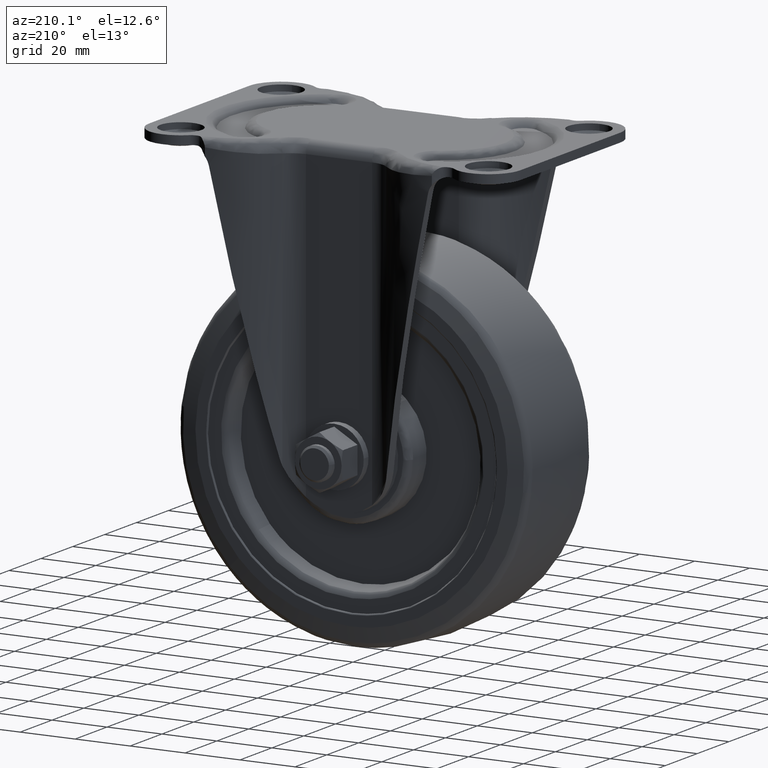
[diagram: clean part render]
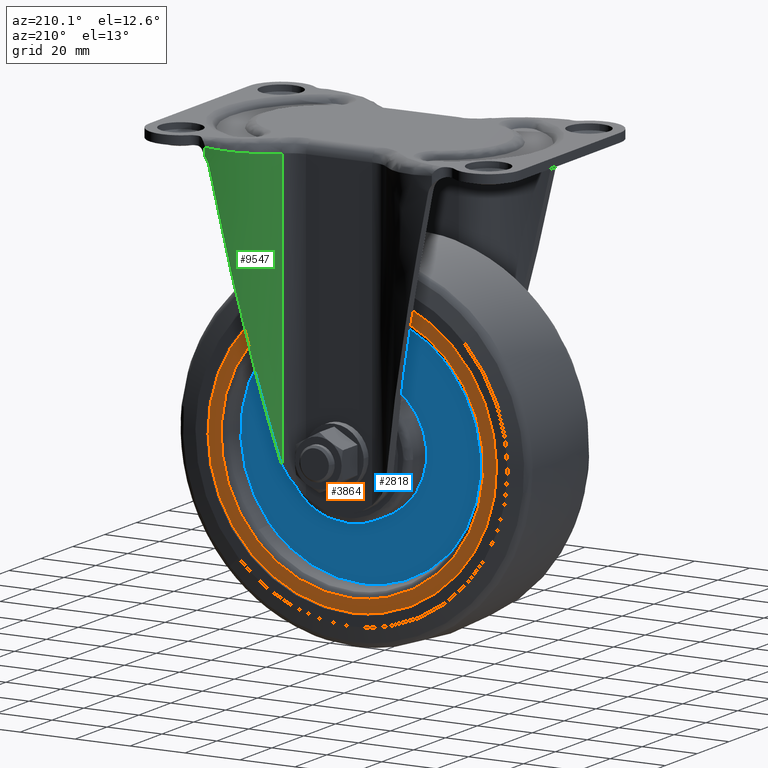
[diagram: same view with three faces highlighted in distinct colors, each labeled with its STEP entity id]
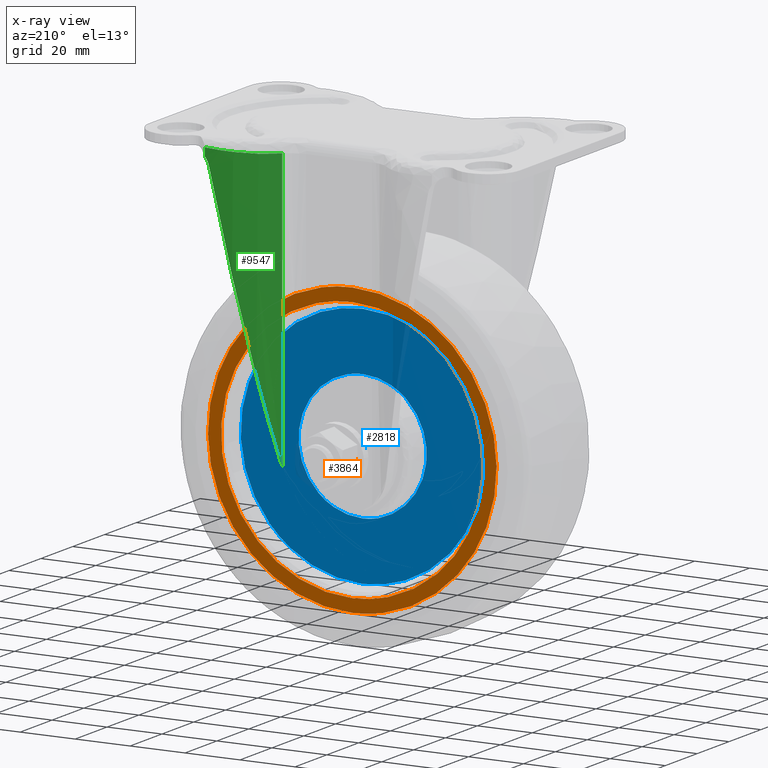
[diagram: x-ray of the same camera — body ghosted, the three highlighted faces saturated]
A machine part, auxiliary view with three faces highlighted in distinct colors.
The next image is the same camera in x-ray (body ghosted, the three faces saturated) — at least one of them is partly hidden behind the body in this view.
Their STEP definitions:

[orange] entity #3864 — the highlighted face is a freeform B-spline surface patch.
#3657=CARTESIAN_POINT('',(45.959362842049053,20.500000000000000,-86.960149470310910));
#3658=VERTEX_POINT('',#3657);
#3672=CARTESIAN_POINT('',(0.0,20.500000000000000,-147.773431263864890));
#3673=VERTEX_POINT('',#3672);
#3674=CARTESIAN_POINT('',(0.0,20.500000000000000,-147.773431263864890));
#3675=CARTESIAN_POINT('',(47.773431263714727,20.500000000000007,-147.773431263907530));
#3676=CARTESIAN_POINT('',(47.773431263516002,20.500000000000000,-100.000000000099010));
#3677=CARTESIAN_POINT('',(47.773431263488362,20.499999999999996,-93.353890611006534));
#3678=CARTESIAN_POINT('',(45.959362842049046,20.499999999999993,-86.960149470310910));
#3686=(BOUNDED_CURVE()B_SPLINE_CURVE(2,(#3674,#3675,#3676,#3677,#3678),.UNSPECIFIED.,.F.,.U.)B_SPLINE_CURVE_WITH_KNOTS((3,2,3),(0.0,0.250000000000000,0.296505535785155),.UNSPECIFIED.)CURVE()GEOMETRIC_REPRESENTATION_ITEM()RATIONAL_B_SPLINE_CURVE((1.0,0.707106781186548,1.0,0.945515375724967,0.911301444601641))REPRESENTATION_ITEM(''));
#3687=EDGE_CURVE('',#3673,#3658,#3686,.T.);
#3689=CARTESIAN_POINT('',(-45.959362842049060,20.500000000000000,-113.039850529689100));
#3690=VERTEX_POINT('',#3689);
#3691=CARTESIAN_POINT('',(-45.959362842049060,20.499999999999993,-113.039850529689080));
#3692=CARTESIAN_POINT('',(-36.104554743849043,20.499999999999996,-147.773431263808480));
#3693=CARTESIAN_POINT('',(0.0,20.500000000000000,-147.773431263864890));
#3701=(BOUNDED_CURVE()B_SPLINE_CURVE(2,(#3691,#3692,#3693),.UNSPECIFIED.,.F.,.U.)B_SPLINE_CURVE_WITH_KNOTS((3,3),(0.796505535785155,1.0),.UNSPECIFIED.)CURVE()GEOMETRIC_REPRESENTATION_ITEM()RATIONAL_B_SPLINE_CURVE((0.911301444601641,0.761591405461580,1.0))REPRESENTATION_ITEM(''));
#3702=EDGE_CURVE('',#3690,#3673,#3701,.T.);
#3752=CARTESIAN_POINT('',(0.0,20.500000000000000,-52.226568736135107));
#3753=VERTEX_POINT('',#3752);
#3754=CARTESIAN_POINT('',(0.0,20.500000000000000,-52.226568736135107));
#3755=CARTESIAN_POINT('',(-47.773431263714727,20.500000000000007,-52.226568736092503));
#3756=CARTESIAN_POINT('',(-47.773431263516002,20.499999999999989,-99.999999999901007));
#3757=CARTESIAN_POINT('',(-47.773431263488362,20.499999999999996,-106.646109388993420));
#3758=CARTESIAN_POINT('',(-45.959362842049060,20.499999999999993,-113.039850529689080));
#3766=(BOUNDED_CURVE()B_SPLINE_CURVE(2,(#3754,#3755,#3756,#3757,#3758),.UNSPECIFIED.,.F.,.U.)B_SPLINE_CURVE_WITH_KNOTS((3,2,3),(0.500000000000000,0.750000000000000,0.796505535785155),.UNSPECIFIED.)CURVE()GEOMETRIC_REPRESENTATION_ITEM()RATIONAL_B_SPLINE_CURVE((1.0,0.707106781186548,1.0,0.945515375724967,0.911301444601641))REPRESENTATION_ITEM(''));
#3767=EDGE_CURVE('',#3753,#3690,#3766,.T.);
#3769=CARTESIAN_POINT('',(45.959362842049046,20.499999999999993,-86.960149470310910));
#3770=CARTESIAN_POINT('',(36.104554743849029,20.499999999999996,-52.226568736191496));
#3771=CARTESIAN_POINT('',(0.0,20.500000000000000,-52.226568736135107));
#3779=(BOUNDED_CURVE()B_SPLINE_CURVE(2,(#3769,#3770,#3771),.UNSPECIFIED.,.F.,.U.)B_SPLINE_CURVE_WITH_KNOTS((3,3),(0.296505535785155,0.500000000000000),.UNSPECIFIED.)CURVE()GEOMETRIC_REPRESENTATION_ITEM()RATIONAL_B_SPLINE_CURVE((0.911301444601641,0.761591405461580,1.0))REPRESENTATION_ITEM(''));
#3780=EDGE_CURVE('',#3658,#3753,#3779,.T.);
#3787=CARTESIAN_POINT('',(-57.740190513793557,20.500000000000000,-42.255250203510393));
#3788=CARTESIAN_POINT('',(-57.740190513793557,20.500000000000000,-157.744752612809090));
#3789=CARTESIAN_POINT('',(57.740193329890658,20.500000000000000,-42.255250203510393));
#3790=CARTESIAN_POINT('',(57.740193329890658,20.500000000000000,-157.744752612809090));
#3791=B_SPLINE_SURFACE_WITH_KNOTS('',1,1,((#3787,#3789),(#3788,#3790)),.UNSPECIFIED.,.F.,.F.,.U.,(2,2),(2,2),(0.0,115.489502409298690),(0.0,115.480383843684190),.UNSPECIFIED.);
#3792=CARTESIAN_POINT('',(-52.495854820699947,20.500000003024141,-99.340282906093194));
#3793=VERTEX_POINT('',#3792);
#3794=CARTESIAN_POINT('',(0.0,20.500000000000000,-152.500000000000000));
#3795=VERTEX_POINT('',#3794);
#3796=CARTESIAN_POINT('',(-52.495854820699947,20.500000003024144,-99.340282906093194));
#3797=CARTESIAN_POINT('',(-52.499999999999986,20.500000003014755,-99.670128430410401));
#3798=CARTESIAN_POINT('',(-52.499999999999993,20.500000003005258,-100.0));
#3799=CARTESIAN_POINT('',(-52.499999999999986,20.500000001493191,-152.500000000000030));
#3800=CARTESIAN_POINT('',(0.0,20.500000000000000,-152.500000000000000));
#3808=(BOUNDED_CURVE()B_SPLINE_CURVE(2,(#3796,#3797,#3798,#3799,#3800),.UNSPECIFIED.,.F.,.U.)B_SPLINE_CURVE_WITH_KNOTS((3,2,3),(0.747784295921625,0.750000000000000,1.0),.UNSPECIFIED.)CURVE()GEOMETRIC_REPRESENTATION_ITEM()RATIONAL_B_SPLINE_CURVE((0.994854295643774,0.997404141202186,1.0,0.707106781186547,1.0))REPRESENTATION_ITEM(''));
#3809=EDGE_CURVE('',#3793,#3795,#3808,.T.);
#3810=ORIENTED_EDGE('',*,*,#3809,.F.);
#3811=CARTESIAN_POINT('',(0.0,20.500000000000000,-47.500000000000007));
#3812=VERTEX_POINT('',#3811);
#3813=CARTESIAN_POINT('',(0.0,20.500000000000000,-47.500000000000007));
#3814=CARTESIAN_POINT('',(-51.844376320103578,20.500000001512070,-47.500000000000000));
#3815=CARTESIAN_POINT('',(-52.495854820699947,20.500000003024141,-99.340282906093194));
#3823=(BOUNDED_CURVE()B_SPLINE_CURVE(2,(#3813,#3814,#3815),.UNSPECIFIED.,.F.,.U.)B_SPLINE_CURVE_WITH_KNOTS((3,3),(0.500000000000000,0.747784295921625),.UNSPECIFIED.)CURVE()GEOMETRIC_REPRESENTATION_ITEM()RATIONAL_B_SPLINE_CURVE((1.0,0.709702639984361,0.994854295643775))REPRESENTATION_ITEM(''));
#3824=EDGE_CURVE('',#3812,#3793,#3823,.T.);
#3825=ORIENTED_EDGE('',*,*,#3824,.F.);
#3826=CARTESIAN_POINT('',(52.495854820699947,20.500000003024141,-100.659717093906810));
#3827=VERTEX_POINT('',#3826);
#3828=CARTESIAN_POINT('',(52.495854820699947,20.500000003024141,-100.659717093906820));
#3829=CARTESIAN_POINT('',(52.499999999999986,20.500000003014762,-100.329871569589610));
#3830=CARTESIAN_POINT('',(52.499999999999993,20.500000003005258,-100.0));
#3831=CARTESIAN_POINT('',(52.499999999999986,20.500000001493191,-47.500000000000007));
#3832=CARTESIAN_POINT('',(0.0,20.500000000000000,-47.500000000000007));
#3840=(BOUNDED_CURVE()B_SPLINE_CURVE(2,(#3828,#3829,#3830,#3831,#3832),.UNSPECIFIED.,.F.,.U.)B_SPLINE_CURVE_WITH_KNOTS((3,2,3),(0.247784295921625,0.250000000000000,0.500000000000000),.UNSPECIFIED.)CURVE()GEOMETRIC_REPRESENTATION_ITEM()RATIONAL_B_SPLINE_CURVE((0.994854295643775,0.997404141202187,1.0,0.707106781186547,1.0))REPRESENTATION_ITEM(''));
#3841=EDGE_CURVE('',#3827,#3812,#3840,.T.);
#3842=ORIENTED_EDGE('',*,*,#3841,.F.);
#3843=CARTESIAN_POINT('',(0.0,20.500000000000000,-152.500000000000000));
#3844=CARTESIAN_POINT('',(51.844376320103578,20.500000001512070,-152.499999999999940));
#3845=CARTESIAN_POINT('',(52.495854820699947,20.500000003024141,-100.659717093906820));
#3853=(BOUNDED_CURVE()B_SPLINE_CURVE(2,(#3843,#3844,#3845),.UNSPECIFIED.,.F.,.U.)B_SPLINE_CURVE_WITH_KNOTS((3,3),(0.0,0.247784295921625),.UNSPECIFIED.)CURVE()GEOMETRIC_REPRESENTATION_ITEM()RATIONAL_B_SPLINE_CURVE((1.0,0.709702639984361,0.994854295643775))REPRESENTATION_ITEM(''));
#3854=EDGE_CURVE('',#3795,#3827,#3853,.T.);
#3855=ORIENTED_EDGE('',*,*,#3854,.F.);
#3856=EDGE_LOOP('',(#3810,#3825,#3842,#3855));
#3857=FACE_OUTER_BOUND('',#3856,.T.);
#3858=ORIENTED_EDGE('',*,*,#3687,.T.);
#3859=ORIENTED_EDGE('',*,*,#3780,.T.);
#3860=ORIENTED_EDGE('',*,*,#3767,.T.);
#3861=ORIENTED_EDGE('',*,*,#3702,.T.);
#3862=EDGE_LOOP('',(#3858,#3859,#3860,#3861));
#3863=FACE_BOUND('',#3862,.T.);
#3864=ADVANCED_FACE('',(#3857,#3863),#3791,.F.);

[blue] entity #2818 — the highlighted face is a freeform B-spline surface patch.
#2638=CARTESIAN_POINT('',(-16.038661258010421,14.0,-83.098776817910618));
#2639=VERTEX_POINT('',#2638);
#2645=CARTESIAN_POINT('',(0.0,14.0,-76.700000000000003));
#2646=VERTEX_POINT('',#2645);
#2647=CARTESIAN_POINT('',(0.0,14.0,-76.700000000000003));
#2648=CARTESIAN_POINT('',(-9.295757137015070,13.999999999999998,-76.700000000000003));
#2649=CARTESIAN_POINT('',(-16.038661258010425,13.999999999999996,-83.098776817910618));
#2657=(BOUNDED_CURVE()B_SPLINE_CURVE(2,(#2647,#2648,#2649),.UNSPECIFIED.,.F.,.U.)B_SPLINE_CURVE_WITH_KNOTS((3,3),(0.500000000000000,0.621049523483373),.UNSPECIFIED.)CURVE()GEOMETRIC_REPRESENTATION_ITEM()RATIONAL_B_SPLINE_CURVE((1.0,0.858181661724481,0.853699661604605))REPRESENTATION_ITEM(''));
#2658=EDGE_CURVE('',#2646,#2639,#2657,.T.);
#2660=CARTESIAN_POINT('',(16.038661258010428,14.0,-116.901223182089400));
#2661=VERTEX_POINT('',#2660);
#2662=CARTESIAN_POINT('',(16.038661258010436,13.999999999999998,-116.901223182089380));
#2663=CARTESIAN_POINT('',(23.300000000000001,14.000000000000005,-110.010470299430810));
#2664=CARTESIAN_POINT('',(23.300000000000001,14.0,-100.0));
#2665=CARTESIAN_POINT('',(23.300000000000004,13.999999999999998,-76.700000000000003));
#2666=CARTESIAN_POINT('',(0.0,14.0,-76.700000000000003));
#2674=(BOUNDED_CURVE()B_SPLINE_CURVE(2,(#2662,#2663,#2664,#2665,#2666),.UNSPECIFIED.,.F.,.U.)B_SPLINE_CURVE_WITH_KNOTS((3,2,3),(0.121049523483373,0.250000000000000,0.500000000000000),.UNSPECIFIED.)CURVE()GEOMETRIC_REPRESENTATION_ITEM()RATIONAL_B_SPLINE_CURVE((0.853699661604605,0.848925119462067,1.0,0.707106781186548,1.0))REPRESENTATION_ITEM(''));
#2675=EDGE_CURVE('',#2661,#2646,#2674,.T.);
#2705=CARTESIAN_POINT('',(0.0,14.0,-123.300000000000000));
#2706=VERTEX_POINT('',#2705);
#2707=CARTESIAN_POINT('',(0.0,14.0,-123.300000000000000));
#2708=CARTESIAN_POINT('',(9.295757137015077,14.000000000000002,-123.300000000000050));
#2709=CARTESIAN_POINT('',(16.038661258010436,13.999999999999998,-116.901223182089370));
#2717=(BOUNDED_CURVE()B_SPLINE_CURVE(2,(#2707,#2708,#2709),.UNSPECIFIED.,.F.,.U.)B_SPLINE_CURVE_WITH_KNOTS((3,3),(0.0,0.121049523483373),.UNSPECIFIED.)CURVE()GEOMETRIC_REPRESENTATION_ITEM()RATIONAL_B_SPLINE_CURVE((1.0,0.858181661724481,0.853699661604605))REPRESENTATION_ITEM(''));
#2718=EDGE_CURVE('',#2706,#2661,#2717,.T.);
#2720=CARTESIAN_POINT('',(-16.038661258010425,13.999999999999996,-83.098776817910618));
#2721=CARTESIAN_POINT('',(-23.300000000000001,13.999999999999993,-89.989529700569179));
#2722=CARTESIAN_POINT('',(-23.300000000000001,14.0,-100.0));
#2723=CARTESIAN_POINT('',(-23.300000000000004,13.999999999999998,-123.300000000000010));
#2724=CARTESIAN_POINT('',(0.0,14.0,-123.300000000000000));
#2732=(BOUNDED_CURVE()B_SPLINE_CURVE(2,(#2720,#2721,#2722,#2723,#2724),.UNSPECIFIED.,.F.,.U.)B_SPLINE_CURVE_WITH_KNOTS((3,2,3),(0.621049523483373,0.750000000000000,1.0),.UNSPECIFIED.)CURVE()GEOMETRIC_REPRESENTATION_ITEM()RATIONAL_B_SPLINE_CURVE((0.853699661604605,0.848925119462067,1.0,0.707106781186548,1.0))REPRESENTATION_ITEM(''));
#2733=EDGE_CURVE('',#2639,#2706,#2732,.T.);
#2741=CARTESIAN_POINT('',(-48.785337735258267,14.0,-51.201119637182373));
#2742=CARTESIAN_POINT('',(-48.785337735258267,14.0,-148.798882742830390));
#2743=CARTESIAN_POINT('',(48.785340115270962,14.0,-51.201119637182373));
#2744=CARTESIAN_POINT('',(48.785340115270962,14.0,-148.798882742830390));
#2745=B_SPLINE_SURFACE_WITH_KNOTS('',1,1,((#2741,#2743),(#2742,#2744)),.UNSPECIFIED.,.F.,.F.,.U.,(2,2),(2,2),(0.0,97.597763105647999),(0.0,97.570677850529222),.UNSPECIFIED.);
#2746=CARTESIAN_POINT('',(-33.736666854499347,14.000000000000121,-71.186164447654122));
#2747=VERTEX_POINT('',#2746);
#2748=CARTESIAN_POINT('',(0.0,14.0,-144.366651999999990));
#2749=VERTEX_POINT('',#2748);
#2750=CARTESIAN_POINT('',(-33.736666854499319,13.999999999999996,-71.186164447654136));
#2751=CARTESIAN_POINT('',(-44.366652000000002,14.000000000000005,-83.632277943045281));
#2752=CARTESIAN_POINT('',(-44.366652000000002,14.0,-100.0));
#2753=CARTESIAN_POINT('',(-44.366652000000002,13.999999999999998,-144.366652000000070));
#2754=CARTESIAN_POINT('',(0.0,14.0,-144.366651999999990));
#2762=(BOUNDED_CURVE()B_SPLINE_CURVE(2,(#2750,#2751,#2752,#2753,#2754),.UNSPECIFIED.,.F.,.U.)B_SPLINE_CURVE_WITH_KNOTS((3,2,3),(0.636856838650619,0.750000000000000,1.0),.UNSPECIFIED.)CURVE()GEOMETRIC_REPRESENTATION_ITEM()RATIONAL_B_SPLINE_CURVE((0.854871031639152,0.867444541142600,1.0,0.707106781186547,1.0))REPRESENTATION_ITEM(''));
#2763=EDGE_CURVE('',#2747,#2749,#2762,.T.);
#2764=ORIENTED_EDGE('',*,*,#2763,.F.);
#2765=CARTESIAN_POINT('',(0.0,14.0,-55.633348000000012));
#2766=VERTEX_POINT('',#2765);
#2767=CARTESIAN_POINT('',(0.0,14.0,-55.633348000000012));
#2768=CARTESIAN_POINT('',(-20.453306721998263,14.000000000000002,-55.633348000000005));
#2769=CARTESIAN_POINT('',(-33.736666854499319,13.999999999999996,-71.186164447654136));
#2777=(BOUNDED_CURVE()B_SPLINE_CURVE(2,(#2767,#2768,#2769),.UNSPECIFIED.,.F.,.U.)B_SPLINE_CURVE_WITH_KNOTS((3,3),(0.500000000000000,0.636856838650619),.UNSPECIFIED.)CURVE()GEOMETRIC_REPRESENTATION_ITEM()RATIONAL_B_SPLINE_CURVE((1.0,0.839662240043947,0.854871031639152))REPRESENTATION_ITEM(''));
#2778=EDGE_CURVE('',#2766,#2747,#2777,.T.);
#2779=ORIENTED_EDGE('',*,*,#2778,.F.);
#2780=CARTESIAN_POINT('',(33.736666854499362,14.000000000000121,-128.813835552345890));
#2781=VERTEX_POINT('',#2780);
#2782=CARTESIAN_POINT('',(33.736666854499333,13.999999999999996,-128.813835552345950));
#2783=CARTESIAN_POINT('',(44.366652000000002,14.000000000000005,-116.367722056954780));
#2784=CARTESIAN_POINT('',(44.366652000000002,14.0,-100.0));
#2785=CARTESIAN_POINT('',(44.366652000000002,13.999999999999998,-55.633348000000019));
#2786=CARTESIAN_POINT('',(0.0,14.0,-55.633348000000012));
#2794=(BOUNDED_CURVE()B_SPLINE_CURVE(2,(#2782,#2783,#2784,#2785,#2786),.UNSPECIFIED.,.F.,.U.)B_SPLINE_CURVE_WITH_KNOTS((3,2,3),(0.136856838650619,0.250000000000000,0.500000000000000),.UNSPECIFIED.)CURVE()GEOMETRIC_REPRESENTATION_ITEM()RATIONAL_B_SPLINE_CURVE((0.854871031639152,0.867444541142600,1.0,0.707106781186547,1.0))REPRESENTATION_ITEM(''));
#2795=EDGE_CURVE('',#2781,#2766,#2794,.T.);
#2796=ORIENTED_EDGE('',*,*,#2795,.F.);
#2797=CARTESIAN_POINT('',(0.0,14.0,-144.366651999999990));
#2798=CARTESIAN_POINT('',(20.453306721998270,14.000000000000002,-144.366652000000040));
#2799=CARTESIAN_POINT('',(33.736666854499333,13.999999999999996,-128.813835552345950));
#2807=(BOUNDED_CURVE()B_SPLINE_CURVE(2,(#2797,#2798,#2799),.UNSPECIFIED.,.F.,.U.)B_SPLINE_CURVE_WITH_KNOTS((3,3),(0.0,0.136856838650619),.UNSPECIFIED.)CURVE()GEOMETRIC_REPRESENTATION_ITEM()RATIONAL_B_SPLINE_CURVE((1.0,0.839662240043947,0.854871031639152))REPRESENTATION_ITEM(''));
#2808=EDGE_CURVE('',#2749,#2781,#2807,.T.);
#2809=ORIENTED_EDGE('',*,*,#2808,.F.);
#2810=EDGE_LOOP('',(#2764,#2779,#2796,#2809));
#2811=FACE_OUTER_BOUND('',#2810,.T.);
#2812=ORIENTED_EDGE('',*,*,#2658,.T.);
#2813=ORIENTED_EDGE('',*,*,#2733,.T.);
#2814=ORIENTED_EDGE('',*,*,#2718,.T.);
#2815=ORIENTED_EDGE('',*,*,#2675,.T.);
#2816=EDGE_LOOP('',(#2812,#2813,#2814,#2815));
#2817=FACE_BOUND('',#2816,.T.);
#2818=ADVANCED_FACE('',(#2811,#2817),#2745,.F.);

[green] entity #9547 — the highlighted face is a freeform B-spline surface patch.
#6937=CARTESIAN_POINT('',(18.914967121290498,31.823453018504100,-4.200000000000000));
#6938=VERTEX_POINT('',#6937);
#7040=CARTESIAN_POINT('',(41.310868942585152,41.797070384291949,-2.800198280878965));
#7041=VERTEX_POINT('',#7040);
#7063=CARTESIAN_POINT('',(18.914967121290509,31.823453018504111,-4.199999999999982));
#7064=CARTESIAN_POINT('',(19.101245604720528,32.017103054796273,-4.199561485473861));
#7065=CARTESIAN_POINT('',(19.477096666998960,32.407827579231210,-4.198676701856171));
#7066=CARTESIAN_POINT('',(20.064585140454810,32.980510375947681,-4.191676817002533));
#7067=CARTESIAN_POINT('',(20.676046617064681,33.548551651069012,-4.180550208741490));
#7068=CARTESIAN_POINT('',(21.313212544980669,34.109431493564820,-4.164868415528567));
#7069=CARTESIAN_POINT('',(21.976000832611220,34.662267648994408,-4.144749172655181));
#7070=CARTESIAN_POINT('',(22.664771879239190,35.205674299456689,-4.120160072738317));
#7071=CARTESIAN_POINT('',(23.379704118207869,35.738351604696987,-4.091109947519584));
#7072=CARTESIAN_POINT('',(24.120961204684200,36.258924933705529,-4.057596386604762));
#7073=CARTESIAN_POINT('',(24.888641579043490,36.765990491229879,-4.019619750157554));
#7074=CARTESIAN_POINT('',(25.682787902466440,37.258104610347559,-3.977180857888497));
#7075=CARTESIAN_POINT('',(26.503379362426472,37.733788533154929,-3.930275754136770));
#7076=CARTESIAN_POINT('',(27.350331086730701,38.191530287555182,-3.878919555613994));
#7077=CARTESIAN_POINT('',(28.223482249518010,38.629783714470179,-3.823054358371756));
#7078=CARTESIAN_POINT('',(29.082563439678900,39.028396215367458,-3.765580982868264));
#7079=CARTESIAN_POINT('',(29.947191753451889,39.399379909508177,-3.704750763020067));
#7080=CARTESIAN_POINT('',(30.838508939887941,39.751974168395741,-3.639331684537829));
#7081=CARTESIAN_POINT('',(31.820968513825260,40.105498541268616,-3.565129634285565));
#7082=CARTESIAN_POINT('',(32.896355663835429,40.451688403326663,-3.482077437327548));
#7083=CARTESIAN_POINT('',(34.066103638717173,40.781509642357364,-3.390191203548494));
#7084=CARTESIAN_POINT('',(35.331169467858579,41.085002547758442,-3.289460829097540));
#7085=CARTESIAN_POINT('',(36.691883546015028,41.351930646483979,-3.179894049053931));
#7086=CARTESIAN_POINT('',(38.147867868199448,41.569188261780383,-3.061456442447696));
#7087=CARTESIAN_POINT('',(39.697620414186957,41.731516738709907,-2.934279107868727));
#7088=CARTESIAN_POINT('',(40.763604315127807,41.774832526456407,-2.845682713401332));
#7089=CARTESIAN_POINT('',(41.310868942585287,41.797070384291963,-2.800198280878963));
#7090=B_SPLINE_CURVE_WITH_KNOTS('',3,(#7063,#7064,#7065,#7066,#7067,#7068,#7069,#7070,#7071,#7072,#7073,#7074,#7075,#7076,#7077,#7078,#7079,#7080,#7081,#7082,#7083,#7084,#7085,#7086,#7087,#7088,#7089),.UNSPECIFIED.,.F.,.U.,(4,1,1,1,1,1,1,1,1,1,1,1,1,1,1,1,1,1,1,1,1,1,1,1,4),(0.0,0.031980641807321,0.064526820136706,0.097639447837752,0.131319391592707,0.165567474905470,0.200384480857562,0.235771154652059,0.271728205964329,0.308256311116554,0.345356115091336,0.383028233398194,0.421273253805410,0.460091737948529,0.499484222825698,0.534186033063267,0.572298396791026,0.613821625838115,0.658755939563954,0.707101489247513,0.758858374442343,0.814026654276576,0.872606355463439,0.934597478108047,1.0),.UNSPECIFIED.);
#7091=EDGE_CURVE('',#6938,#7041,#7090,.T.);
#7859=CARTESIAN_POINT('',(18.914967121290498,31.823453018504100,-104.978525347478200));
#7860=VERTEX_POINT('',#7859);
#7861=CARTESIAN_POINT('',(18.914967121290498,31.823453018504100,-104.978525347478200));
#7862=CARTESIAN_POINT('',(18.914967121290498,31.823453018504100,-4.200000000000000));
#7863=QUASI_UNIFORM_CURVE('',1,(#7861,#7862),.UNSPECIFIED.,.F.,.U.);
#7864=EDGE_CURVE('',#7860,#6938,#7863,.T.);
#8805=CARTESIAN_POINT('',(41.310868942585152,41.797070384291949,-5.722018302380841));
#8806=VERTEX_POINT('',#8805);
#8807=CARTESIAN_POINT('',(41.310868942585152,41.797070384291949,-5.722018302380841));
#8808=CARTESIAN_POINT('',(41.310868942585152,41.797070384291949,-2.800198280878965));
#8809=QUASI_UNIFORM_CURVE('',1,(#8807,#8808),.UNSPECIFIED.,.F.,.U.);
#8810=EDGE_CURVE('',#8806,#7041,#8809,.T.);
#9485=CARTESIAN_POINT('',(18.346621469581681,31.208000607474261,-107.532983524143210));
#9486=CARTESIAN_POINT('',(18.346621469581681,31.208000607474261,-0.181878649797355));
#9487=CARTESIAN_POINT('',(28.040561361959391,41.985086650711636,-107.532983524143180));
#9488=CARTESIAN_POINT('',(28.040561361959391,41.985086650711636,-0.181878649797355));
#9489=CARTESIAN_POINT('',(42.534895813386889,41.805300581911176,-107.532983524143210));
#9490=CARTESIAN_POINT('',(42.534895813386889,41.805300581911176,-0.181878649797355));
#9498=(BOUNDED_SURFACE()B_SPLINE_SURFACE(1,2,((#9485,#9487,#9489),(#9486,#9488,#9490)),.UNSPECIFIED.,.F.,.F.,.U.)B_SPLINE_SURFACE_WITH_KNOTS((2,2),(3,3),(0.0,107.351104874345790),(0.0,27.639123101659411),.UNSPECIFIED.)GEOMETRIC_REPRESENTATION_ITEM()RATIONAL_B_SPLINE_SURFACE(((1.0,0.908740740005340,0.995260449497306),(1.0,0.908740740005340,0.995260449497306)))REPRESENTATION_ITEM('')SURFACE());
#9499=ORIENTED_EDGE('',*,*,#7864,.T.);
#9500=ORIENTED_EDGE('',*,*,#7091,.T.);
#9501=ORIENTED_EDGE('',*,*,#8810,.F.);
#9502=CARTESIAN_POINT('',(39.852367748816953,41.726030688477103,-8.702546389594371));
#9503=VERTEX_POINT('',#9502);
#9504=CARTESIAN_POINT('',(41.310868942585152,41.797070384291949,-5.722018302380841));
#9505=CARTESIAN_POINT('',(41.130880139358418,41.792416485061281,-5.937621736045381));
#9506=CARTESIAN_POINT('',(40.965424922724210,41.786629910378537,-6.162006045269645));
#9507=CARTESIAN_POINT('',(40.662824969539869,41.774100264347680,-6.627911718096429));
#9508=CARTESIAN_POINT('',(40.525682833199063,41.767354302543751,-6.869434582840460));
#9509=CARTESIAN_POINT('',(40.341539766190031,41.757355120192742,-7.244797884084876));
#9510=CARTESIAN_POINT('',(40.283762818854811,41.754040835146569,-7.372104275148743));
#9511=CARTESIAN_POINT('',(40.175587288168053,41.747578264936912,-7.631194160870900));
#9512=CARTESIAN_POINT('',(40.125541768652269,41.744451319507760,-7.762142936696113));
#9513=CARTESIAN_POINT('',(39.987627938893752,41.735561472062329,-8.158627482194151));
#9514=CARTESIAN_POINT('',(39.911843543090129,41.730289681811144,-8.428023302432880));
#9515=CARTESIAN_POINT('',(39.852367748816953,41.726030688477103,-8.702546389594371));
#9516=B_SPLINE_CURVE_WITH_KNOTS('',3,(#9504,#9505,#9506,#9507,#9508,#9509,#9510,#9511,#9512,#9513,#9514,#9515),.UNSPECIFIED.,.F.,.U.,(4,2,2,2,2,4),(0.0,0.250000000000002,0.500000000000005,0.625000000000004,0.750000000000003,1.0),.UNSPECIFIED.);
#9517=EDGE_CURVE('',#8806,#9503,#9516,.T.);
#9518=ORIENTED_EDGE('',*,*,#9517,.T.);
#9519=CARTESIAN_POINT('',(19.360835006099201,32.284431320251997,-103.285781091033600));
#9520=VERTEX_POINT('',#9519);
#9521=CARTESIAN_POINT('',(39.852367748816953,41.726030688477117,-8.702546389594378));
#9522=CARTESIAN_POINT('',(27.828192855634224,40.864991944605798,-64.202804486062064));
#9523=CARTESIAN_POINT('',(19.360835006099201,32.284431320252011,-103.285781091033500));
#9531=(BOUNDED_CURVE()B_SPLINE_CURVE(2,(#9521,#9522,#9523),.UNSPECIFIED.,.F.,.U.)CURVE()GEOMETRIC_REPRESENTATION_ITEM()QUASI_UNIFORM_CURVE()RATIONAL_B_SPLINE_CURVE((1.0,0.935799667337346,1.0))REPRESENTATION_ITEM(''));
#9532=EDGE_CURVE('',#9503,#9520,#9531,.T.);
#9533=ORIENTED_EDGE('',*,*,#9532,.T.);
#9534=CARTESIAN_POINT('',(18.914967121290520,31.823453018504122,-104.978525347478200));
#9535=CARTESIAN_POINT('',(18.999963732937150,31.913110857323840,-104.705443909961010));
#9536=CARTESIAN_POINT('',(19.079870034836560,31.996362701111071,-104.427889136815910));
#9537=CARTESIAN_POINT('',(19.191553984645441,32.111649243655307,-104.004655599151310));
#9538=CARTESIAN_POINT('',(19.227418832517650,32.148478339905509,-103.862426827746600));
#9539=CARTESIAN_POINT('',(19.296324462784540,32.218924284453550,-103.575626295576300));
#9540=CARTESIAN_POINT('',(19.329416825253421,32.252593099847843,-103.430798704412690));
#9541=CARTESIAN_POINT('',(19.360835006099201,32.284431320251983,-103.285781091033600));
#9542=B_SPLINE_CURVE_WITH_KNOTS('',3,(#9534,#9535,#9536,#9537,#9538,#9539,#9540,#9541),.UNSPECIFIED.,.F.,.U.,(4,2,2,4),(0.0,0.499999999999991,0.749999999999995,1.0),.UNSPECIFIED.);
#9543=EDGE_CURVE('',#7860,#9520,#9542,.T.);
#9544=ORIENTED_EDGE('',*,*,#9543,.F.);
#9545=EDGE_LOOP('',(#9499,#9500,#9501,#9518,#9533,#9544));
#9546=FACE_OUTER_BOUND('',#9545,.T.);
#9547=ADVANCED_FACE('',(#9546),#9498,.T.);